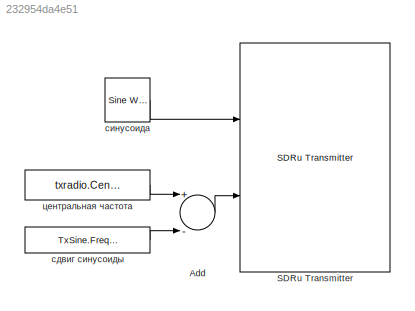
MODEL slx_232954da4e51
KIND model
CONFIG AbsTol = auto
CONFIG EnableMultiTasking = off
CONFIG FixedStep = auto
CONFIG MaxStep = auto
CONFIG MinStep = auto
CONFIG PreLoadFcn = Fs = 200e3; % Частота дискретизации, выборок в с\n\n% Инициализации параметров синусоиды\nTxSine.Frequency           = 100; \nTxSine.Amplitude            = 1;\nTxSine.SamplesPerFrame = 2048;\n\n% Инициализация параметров передачи USRP\ntxradio.MasterClockRate  =  20e6;   % тактовая частота, Гц\ntxradio.CenterFrequency  =  450e6; % центральная частота\ntxradio.Gain                   =  40;       % усиление, ...<+88ch>
CONFIG RelTol = 1e-3
CONFIG SampleTimeConstraint = Unconstrained
CONFIG Solver = VariableStepAuto
CONFIG SolverName = VariableStepAuto
CONFIG StartTime = 0.0
CONFIG StopTime = inf
BLOCK [Sum] Add
  InputSameDT = off
  Inputs = +-
  OutDataTypeStr = Inherit: Inherit via internal rule
  Ports = [2, 1]
  SaturateOnIntegerOverflow = off
BLOCK [Reference] SDRu Transmitter  REF=commsdrhw_v2/SDRu Transmitter
  Ports = [2]
  SourceBlock = commsdrhw_v2/SDRu Transmitter
  SourceProductBaseCode = USRP
  SourceProductName = Communications System Toolbox Support Package for USRP(R) Radio
  SourceType = SDRu Transmitter
BLOCK [Constant] сдвиг синусоиды
  Value = TxSine.Frequency
BLOCK [Reference] синусоида  REF=dspsrcs4/Sine Wave
  Ports = [0, 1]
  SourceBlock = dspsrcs4/Sine Wave
  SourceProductBaseCode = DS
  SourceProductName = DSP System Toolbox
  SourceType = Sine Wave
BLOCK [Constant] центральная частота
  Value = txradio.CenterFrequency
LINE Add:1 -> SDRu Transmitter:2
LINE сдвиг синусоиды:1 -> Add:2
LINE синусоида:1 -> SDRu Transmitter:1
LINE центральная частота:1 -> Add:1
